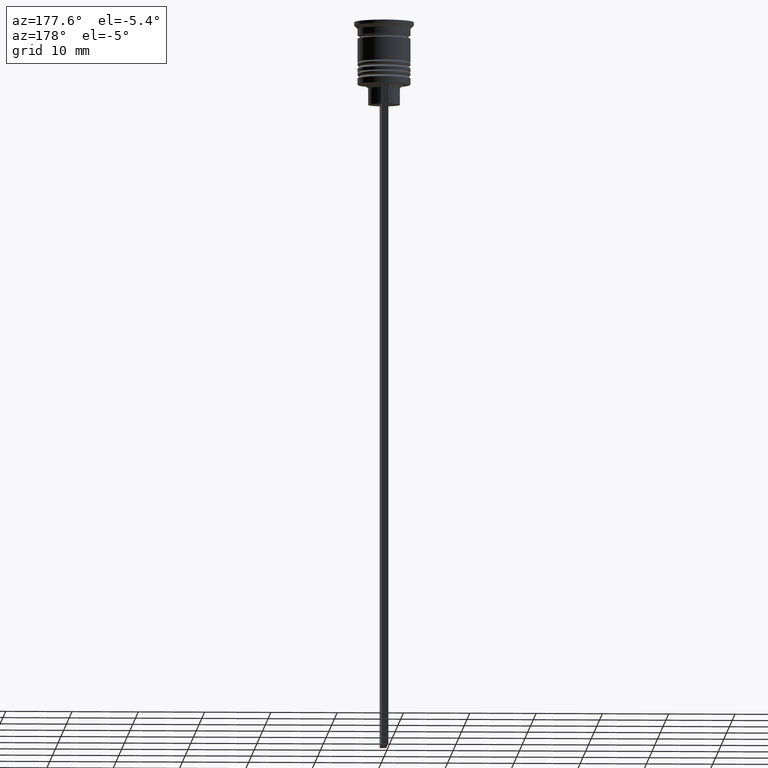
[diagram: clean part render]
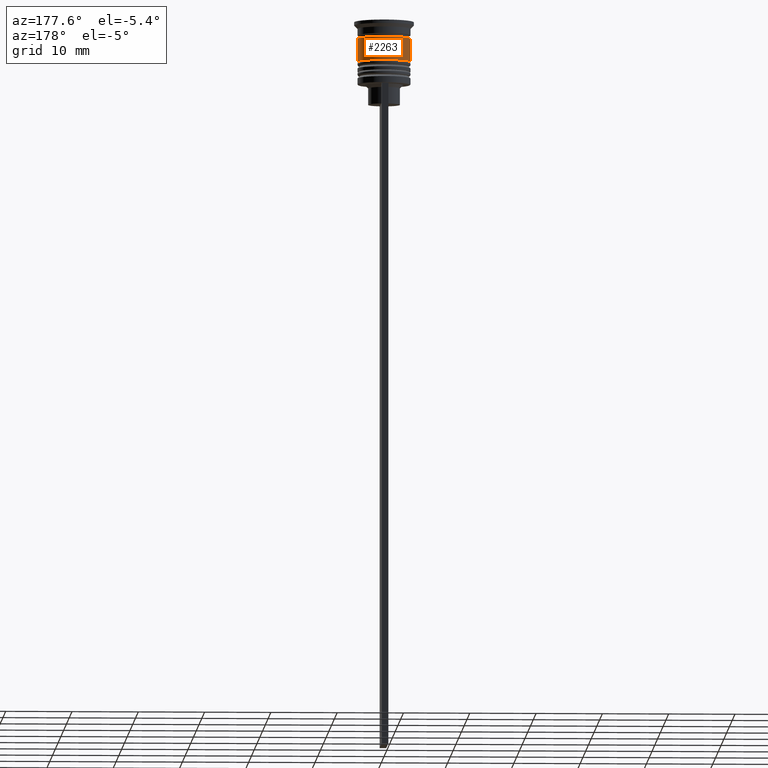
[diagram: same view with one face highlighted and labeled with its STEP entity id]
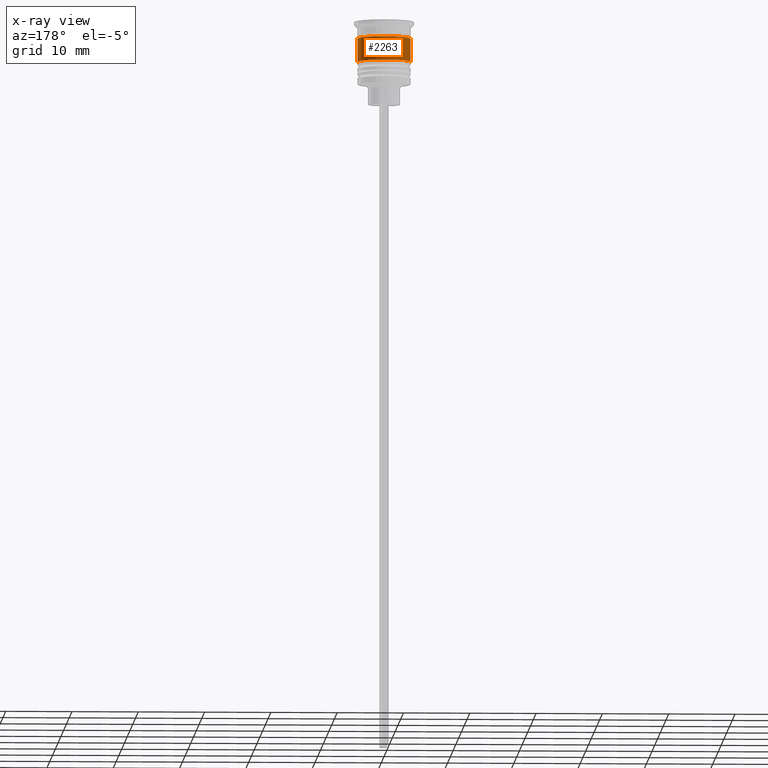
[diagram: x-ray of the same camera — body ghosted, the highlighted face saturated]
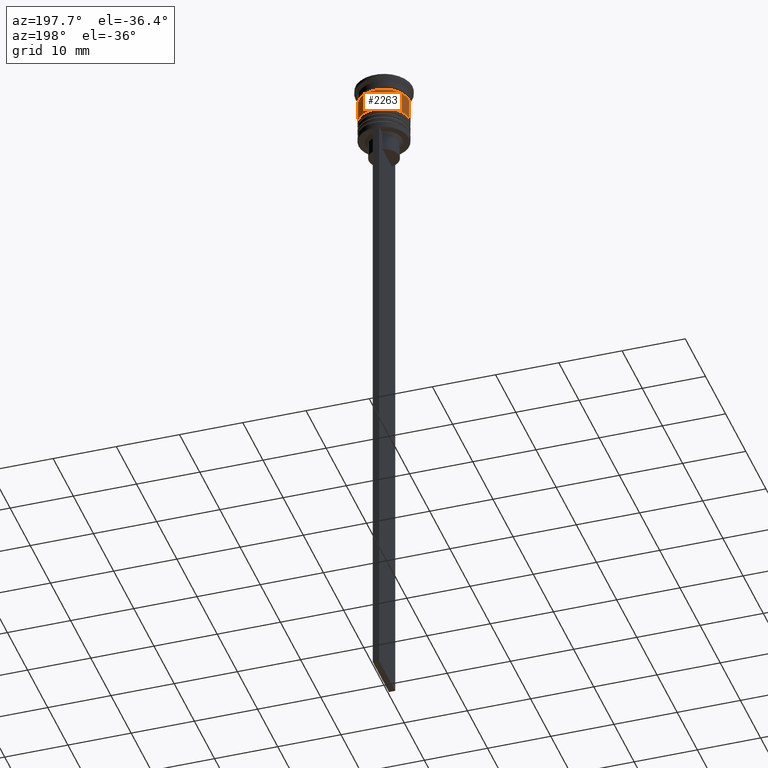
[diagram: same view with one face highlighted and labeled with its STEP entity id]
A machine part, auxiliary view. The second image highlights one B-rep face of the part: STEP entity #2263.
The next image is the same camera in x-ray: the body ghosted, the highlighted face saturated — about 0% of this face is hidden behind the body in this view.
A second angle (auxiliary view) of the same face is appended — the face is thin or edge-on in the first view.
In plain terms, the highlighted cylindrical surface (edge-blend (fillet) strip) has radius 4 mm, axis along (-0, -0, 1).
Its self-contained STEP definition (entity closure, byte-faithful):
#100 = CIRCLE ( 'NONE', #839, 4.000000000000000888 ) ;
#119 = CARTESIAN_POINT ( 'NONE',  ( 0.000000000000000000, 0.000000000000000000, -6.000000000000000000 ) ) ;
#222 = DIRECTION ( 'NONE',  ( 1.000000000000000000, 0.000000000000000000, 0.000000000000000000 ) ) ;
#307 = CARTESIAN_POINT ( 'NONE',  ( -4.000000000000000000, 4.898587196589412829E-16, -2.500000000000000000 ) ) ;
#403 = CYLINDRICAL_SURFACE ( 'NONE', #1199, 4.000000000000000000 ) ;
#498 = VERTEX_POINT ( 'NONE', #307 ) ;
#519 = VECTOR ( 'NONE', #2036, 1000.000000000000000 ) ;
#534 = ORIENTED_EDGE ( 'NONE', *, *, #1356, .F. ) ;
#580 = ORIENTED_EDGE ( 'NONE', *, *, #1695, .T. ) ;
#657 = VERTEX_POINT ( 'NONE', #2519 ) ;
#697 = DIRECTION ( 'NONE',  ( -0.000000000000000000, -0.000000000000000000, 1.000000000000000000 ) ) ;
#733 = ORIENTED_EDGE ( 'NONE', *, *, #2131, .T. ) ;
#805 = EDGE_CURVE ( 'NONE', #657, #498, #1561, .T. ) ;
#839 = AXIS2_PLACEMENT_3D ( 'NONE', #119, #1058, #1653 ) ;
#846 = ORIENTED_EDGE ( 'NONE', *, *, #805, .F. ) ;
#971 = CARTESIAN_POINT ( 'NONE',  ( 0.000000000000000000, 0.000000000000000000, 0.000000000000000000 ) ) ;
#1058 = DIRECTION ( 'NONE',  ( -0.000000000000000000, -0.000000000000000000, 1.000000000000000000 ) ) ;
#1086 = CARTESIAN_POINT ( 'NONE',  ( -4.000000000000000888, 4.898587196589413815E-16, -6.000000000000000000 ) ) ;
#1141 = FACE_OUTER_BOUND ( 'NONE', #1951, .T. ) ;
#1199 = AXIS2_PLACEMENT_3D ( 'NONE', #971, #1576, #1333 ) ;
#1333 = DIRECTION ( 'NONE',  ( 1.000000000000000000, 0.000000000000000000, 0.000000000000000000 ) ) ;
#1356 = EDGE_CURVE ( 'NONE', #1466, #657, #2418, .T. ) ;
#1432 = CARTESIAN_POINT ( 'NONE',  ( 4.000000000000000000, 0.000000000000000000, 0.000000000000000000 ) ) ;
#1466 = VERTEX_POINT ( 'NONE', #1899 ) ;
#1475 = AXIS2_PLACEMENT_3D ( 'NONE', #1968, #1933, #222 ) ;
#1561 = CIRCLE ( 'NONE', #1475, 4.000000000000000000 ) ;
#1576 = DIRECTION ( 'NONE',  ( -0.000000000000000000, -0.000000000000000000, 1.000000000000000000 ) ) ;
#1653 = DIRECTION ( 'NONE',  ( 1.000000000000000000, 0.000000000000000000, 0.000000000000000000 ) ) ;
#1695 = EDGE_CURVE ( 'NONE', #2147, #498, #2452, .T. ) ;
#1879 = CARTESIAN_POINT ( 'NONE',  ( -4.000000000000000000, 4.898587196589412829E-16, 0.000000000000000000 ) ) ;
#1899 = CARTESIAN_POINT ( 'NONE',  ( 4.000000000000000888, 0.000000000000000000, -6.000000000000000000 ) ) ;
#1933 = DIRECTION ( 'NONE',  ( -0.000000000000000000, -0.000000000000000000, 1.000000000000000000 ) ) ;
#1951 = EDGE_LOOP ( 'NONE', ( #733, #580, #846, #534 ) ) ;
#1968 = CARTESIAN_POINT ( 'NONE',  ( 0.000000000000000000, 0.000000000000000000, -2.500000000000000000 ) ) ;
#2036 = DIRECTION ( 'NONE',  ( -0.000000000000000000, -0.000000000000000000, 1.000000000000000000 ) ) ;
#2131 = EDGE_CURVE ( 'NONE', #1466, #2147, #100, .T. ) ;
#2147 = VERTEX_POINT ( 'NONE', #1086 ) ;
#2263 = ADVANCED_FACE ( 'NONE', ( #1141 ), #403, .T. ) ;
#2418 = LINE ( 'NONE', #1432, #519 ) ;
#2424 = VECTOR ( 'NONE', #697, 1000.000000000000000 ) ;
#2452 = LINE ( 'NONE', #1879, #2424 ) ;
#2519 = CARTESIAN_POINT ( 'NONE',  ( 4.000000000000000000, 0.000000000000000000, -2.500000000000000000 ) ) ;